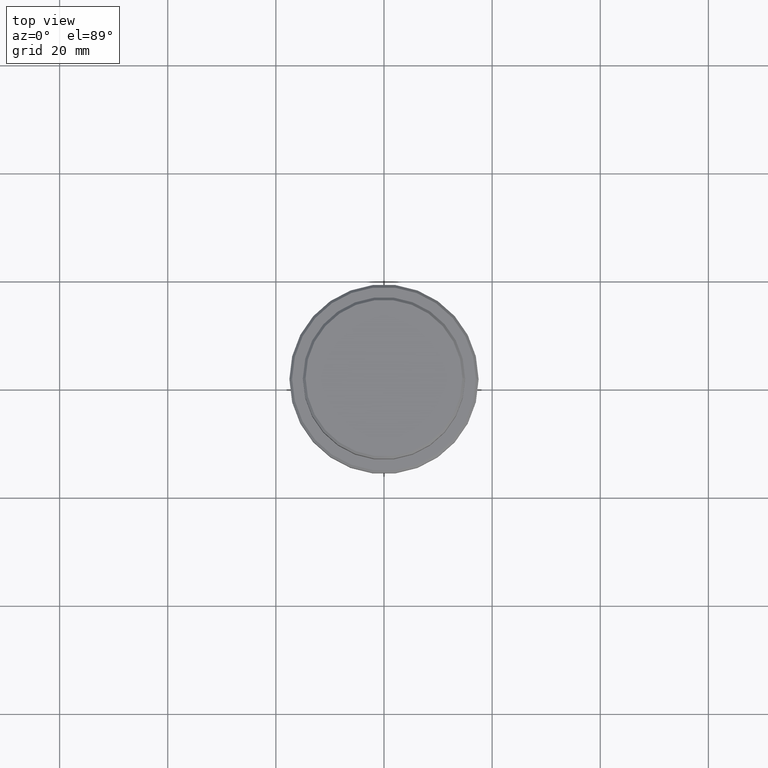
[diagram: clean part render]
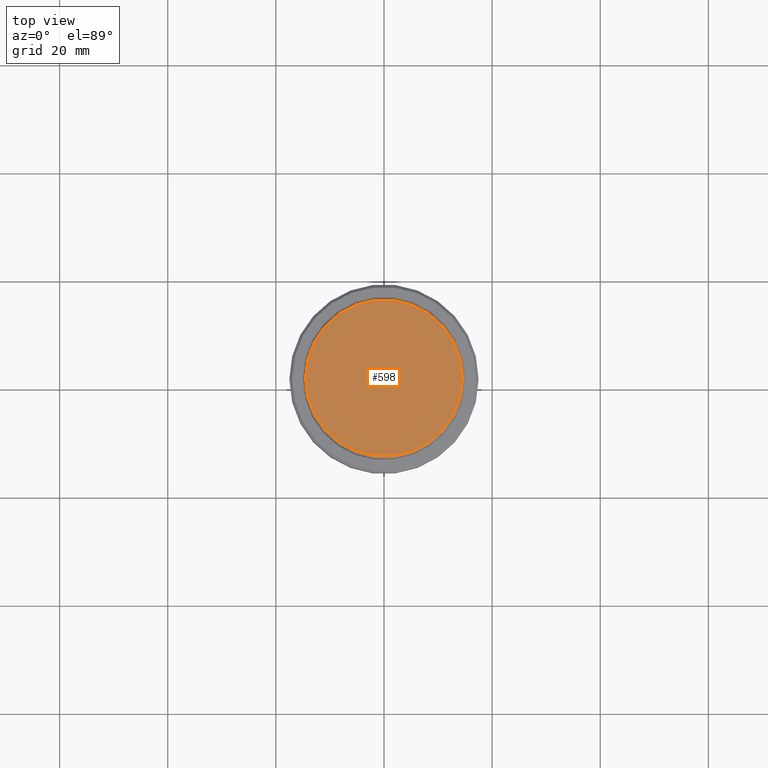
[diagram: same view with one face highlighted and labeled with its STEP entity id]
A machine part, top view. The second image highlights one B-rep face of the part: STEP entity #598.
In plain terms, the highlighted planar face has unit normal (0, -0, 1).
Its self-contained STEP definition (entity closure, byte-faithful):
#141 = DIRECTION ( 'NONE',  ( -0.000000000000000000, -0.000000000000000000, 1.000000000000000000 ) ) ;
#145 = DIRECTION ( 'NONE',  ( 1.000000000000000000, 0.000000000000000000, 0.000000000000000000 ) ) ;
#150 = DIRECTION ( 'NONE',  ( -0.000000000000000000, -0.000000000000000000, 1.000000000000000000 ) ) ;
#263 = CARTESIAN_POINT ( 'NONE',  ( 0.000000000000000000, 0.000000000000000000, 0.000000000000000000 ) ) ;
#313 = AXIS2_PLACEMENT_3D ( 'NONE', #456, #141, #983 ) ;
#339 = FACE_OUTER_BOUND ( 'NONE', #580, .T. ) ;
#358 = CIRCLE ( 'NONE', #867, 14.49999999999999645 ) ;
#418 = VERTEX_POINT ( 'NONE', #1374 ) ;
#443 = CARTESIAN_POINT ( 'NONE',  ( 0.000000000000000000, 0.000000000000000000, 0.000000000000000000 ) ) ;
#444 = CIRCLE ( 'NONE', #313, 14.49999999999999645 ) ;
#456 = CARTESIAN_POINT ( 'NONE',  ( 0.000000000000000000, 0.000000000000000000, 0.000000000000000000 ) ) ;
#580 = EDGE_LOOP ( 'NONE', ( #1335, #1033 ) ) ;
#598 = ADVANCED_FACE ( 'NONE', ( #339 ), #884, .T. ) ;
#663 = EDGE_CURVE ( 'NONE', #713, #418, #444, .T. ) ;
#702 = CARTESIAN_POINT ( 'NONE',  ( -14.49999999999999645, 0.000000000000000000, 0.000000000000000000 ) ) ;
#713 = VERTEX_POINT ( 'NONE', #702 ) ;
#867 = AXIS2_PLACEMENT_3D ( 'NONE', #263, #150, #1021 ) ;
#884 = PLANE ( 'NONE',  #1174 ) ;
#983 = DIRECTION ( 'NONE',  ( 1.000000000000000000, 0.000000000000000000, 0.000000000000000000 ) ) ;
#1021 = DIRECTION ( 'NONE',  ( 1.000000000000000000, 0.000000000000000000, 0.000000000000000000 ) ) ;
#1033 = ORIENTED_EDGE ( 'NONE', *, *, #1057, .T. ) ;
#1057 = EDGE_CURVE ( 'NONE', #418, #713, #358, .T. ) ;
#1174 = AXIS2_PLACEMENT_3D ( 'NONE', #443, #1216, #145 ) ;
#1216 = DIRECTION ( 'NONE',  ( 0.000000000000000000, -0.000000000000000000, 1.000000000000000000 ) ) ;
#1335 = ORIENTED_EDGE ( 'NONE', *, *, #663, .T. ) ;
#1374 = CARTESIAN_POINT ( 'NONE',  ( 14.49999999999999645, 1.806354028742345802E-15, 0.000000000000000000 ) ) ;